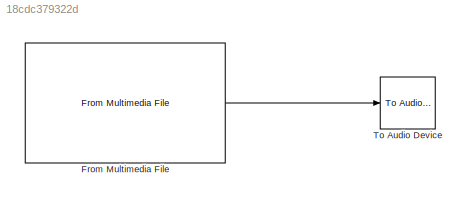
MODEL slx_18cdc379322d
KIND model
BLOCK [Reference] From Multimedia File  REF=dspvision/From Multimedia File
  Ports = [0, 1]
  SourceBlock = dspvision/From Multimedia File
  SourceType = From Multimedia File
  audioDataType = int16
  audioFrameSize = 1024
  colorVideoFormat = Separate color signals
  computeAudioFrameSize = off
  dataOrg = Column-major
  fourcc = RGB
  inheritSampleTime = on
  inputFilename = <userpath>\Documents\Estudios y formación academica\Cranfield\Thesis F16\Work\Solutions\7dof Development\Used Functions\Stall_warning.mp3
  isIntensityVideo = off
  loop = on
  noAudioOutput = off
  numPlays = inf
  outSamplingMode = Frame based
  outputEOF = off
  outputStreams = Audio only
  userDefinedSampleTime = 1/30
  videoDataType = single
BLOCK [Reference] To Audio Device  REF=dspsnks4/To Audio
Device
  Ports = [1]
  SourceBlock = dspsnks4/To Audio\nDevice
  SourceType = To Audio Device
  autoBufferSize = on
  bufferSize = 4096
  deviceDatatype = Determine from input data type
  deviceName = Default
  inheritSampleRate = on
  queueDuration = 1.0
  sampleRate = 44100
LINE From Multimedia File:1 -> To Audio Device:1
